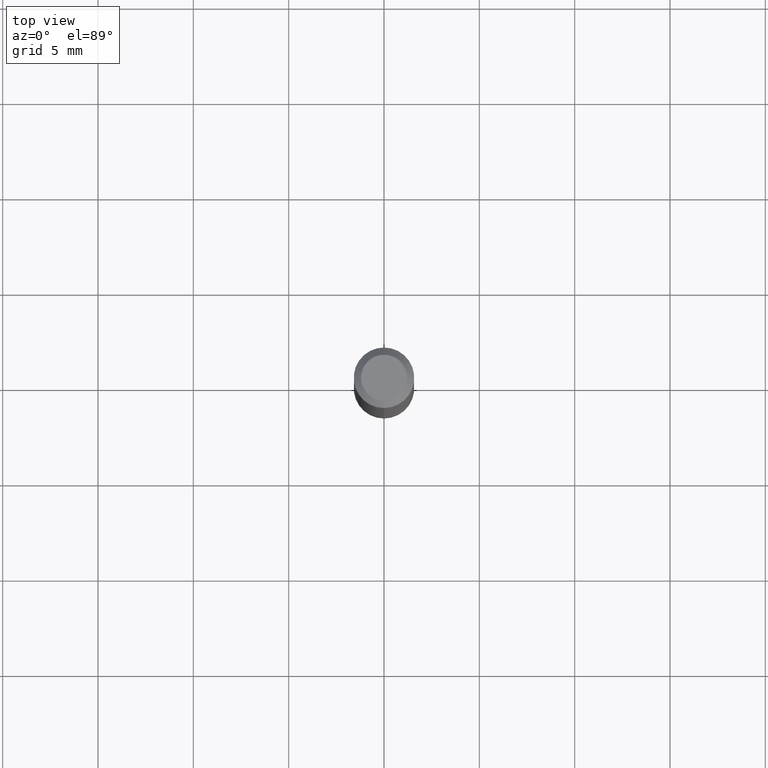
[diagram: clean part render]
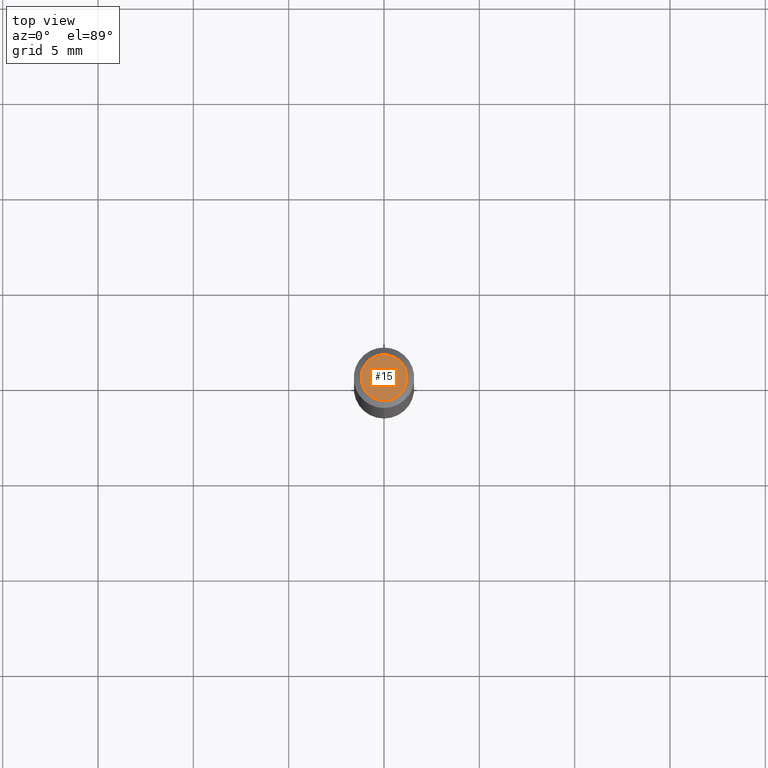
[diagram: same view with one face highlighted and labeled with its STEP entity id]
A machine part, top view. The second image highlights one B-rep face of the part: STEP entity #15.
In plain terms, the highlighted planar face has unit normal (0, -0, -1).
Its self-contained STEP definition (entity closure, byte-faithful):
#10 = DIRECTION ( 'NONE',  ( -6.982962677686266711E-15, -1.000000000000000000, 3.491945446373389782E-15 ) ) ;
#15 = ADVANCED_FACE ( 'NONE', ( #467 ), #278, .F. ) ;
#45 = DIRECTION ( 'NONE',  ( -2.445144721628923764E-29, 3.491945446373389387E-15, 1.000000000000000000 ) ) ;
#75 = CIRCLE ( 'NONE', #217, 0.04749999999999999362 ) ;
#88 = CARTESIAN_POINT ( 'NONE',  ( 2.161086020321355253E-46, -3.086277233870654267E-32, -8.838274484144511642E-18 ) ) ;
#137 = CARTESIAN_POINT ( 'NONE',  ( 3.840629472727447874E-16, 0.04749999999999999362, -1.747056831868805136E-16 ) ) ;
#158 = EDGE_CURVE ( 'NONE', #339, #380, #371, .T. ) ;
#185 = EDGE_CURVE ( 'NONE', #380, #339, #75, .T. ) ;
#217 = AXIS2_PLACEMENT_3D ( 'NONE', #88, #510, #10 ) ;
#236 = ORIENTED_EDGE ( 'NONE', *, *, #158, .T. ) ;
#248 = CARTESIAN_POINT ( 'NONE',  ( 2.161086020321355253E-46, -3.086277233870654267E-32, -8.838274484144511642E-18 ) ) ;
#272 = CARTESIAN_POINT ( 'NONE',  ( 3.316907271900976096E-16, 0.04749999999999999362, -1.702865459448082617E-16 ) ) ;
#278 = PLANE ( 'NONE',  #441 ) ;
#299 = ORIENTED_EDGE ( 'NONE', *, *, #185, .T. ) ;
#339 = VERTEX_POINT ( 'NONE', #137 ) ;
#349 = DIRECTION ( 'NONE',  ( 2.445144721628923764E-29, -3.491945446373389387E-15, -1.000000000000000000 ) ) ;
#371 = CIRCLE ( 'NONE', #415, 0.04749999999999999362 ) ;
#380 = VERTEX_POINT ( 'NONE', #485 ) ;
#415 = AXIS2_PLACEMENT_3D ( 'NONE', #248, #45, #481 ) ;
#427 = DIRECTION ( 'NONE',  ( 6.982962677686265922E-15, 1.000000000000000000, -3.491945446373389387E-15 ) ) ;
#441 = AXIS2_PLACEMENT_3D ( 'NONE', #272, #349, #427 ) ;
#467 = FACE_OUTER_BOUND ( 'NONE', #492, .T. ) ;
#481 = DIRECTION ( 'NONE',  ( -6.982962677686266711E-15, -1.000000000000000000, 3.491945446373389782E-15 ) ) ;
#485 = CARTESIAN_POINT ( 'NONE',  ( -3.773273898774340269E-16, -0.04749999999999999362, 1.570291342185914565E-16 ) ) ;
#492 = EDGE_LOOP ( 'NONE', ( #236, #299 ) ) ;
#510 = DIRECTION ( 'NONE',  ( -2.445144721628923764E-29, 3.491945446373389387E-15, 1.000000000000000000 ) ) ;